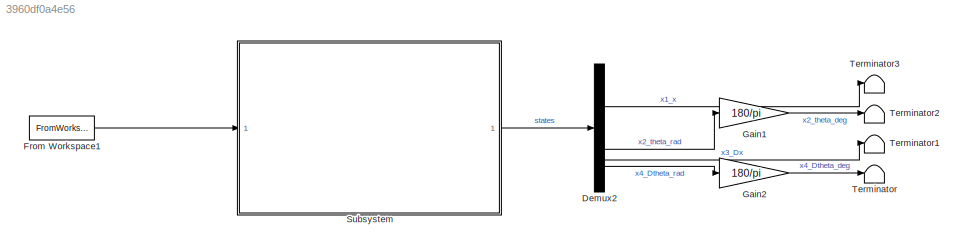
MODEL slx_3960df0a4e56
KIND model
CONFIG AbsTol = auto
CONFIG EnableMultiTasking = off
CONFIG FixedStep = dt
CONFIG MaxStep = 0.001
CONFIG MinStep = auto
CONFIG RelTol = 1e-3
CONFIG SampleTimeConstraint = Unconstrained
CONFIG SolverName = ode4
CONFIG StartTime = 0.0
CONFIG StopTime = end_time
BLOCK [Demux] Demux2
BLOCK [FromWorkspace] From Workspace1
  SampleTime = dt
  VariableName = U_sim
BLOCK [Gain] Gain1
  Gain = 180/pi
BLOCK [Gain] Gain2
  Gain = 180/pi
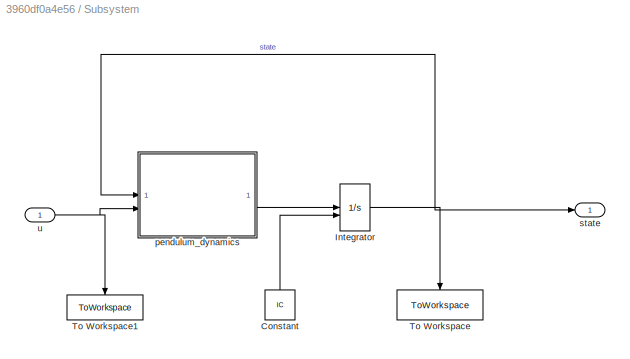
BLOCK [SubSystem] Subsystem
  ShowPortLabels = none
BLOCK [Constant] Subsystem/Constant
  NameLocation = right
  Value = IC
BLOCK [Integrator] Subsystem/Integrator
  InitialConditionSource = external
BLOCK [ToWorkspace] Subsystem/To Workspace
  FixptAsFi = on
  MaxDataPoints = inf
  NameLocation = left
  SampleTime = -1
  Save2DSignal = 2-D array (concatenate along first dimension)
  VariableName = state_out
BLOCK [ToWorkspace] Subsystem/To Workspace1
  FixptAsFi = on
  MaxDataPoints = inf
  NameLocation = left
  SampleTime = -1
  VariableName = u
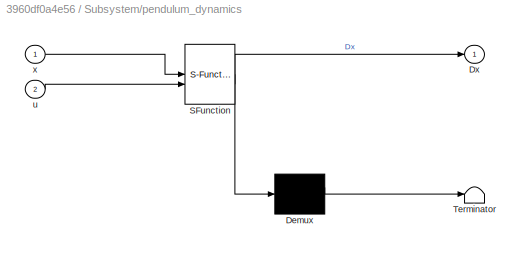
BLOCK [SubSystem] Subsystem/pendulum_dynamics
  ErrorFcn = Stateflow.Translate.translate
  PermitHierarchicalResolution = ExplicitOnly
  SFBlockType = MATLAB Function
  TreatAsAtomicUnit = on
BLOCK [Demux] Subsystem/pendulum_dynamics/ Demux 
  Outputs = 1
BLOCK [S-Function] Subsystem/pendulum_dynamics/ SFunction 
  EnableBusSupport = on
  FunctionName = sf_sfun
  Parameters = params
  PortCounts = [2 2]
  SFcnIsStateOwnerBlock = off
  SFunctionDeploymentMode = off
  Tag = Stateflow S-Function 3
BLOCK [Terminator] Subsystem/pendulum_dynamics/ Terminator 
BLOCK [Outport] Subsystem/pendulum_dynamics/Dx
BLOCK [Inport] Subsystem/pendulum_dynamics/u
  Port = 2
BLOCK [Inport] Subsystem/pendulum_dynamics/x
BLOCK [Outport] Subsystem/state
BLOCK [Inport] Subsystem/u
BLOCK [Terminator] Terminator
BLOCK [Terminator] Terminator1
BLOCK [Terminator] Terminator2
BLOCK [Terminator] Terminator3
LINE Demux2:1 -> Terminator3:1
LINE Demux2:2 -> Gain1:1
LINE Demux2:3 -> Terminator1:1
LINE Demux2:4 -> Gain2:1
LINE From Workspace1:1 -> Subsystem:1
LINE Gain1:1 -> Terminator2:1
LINE Gain2:1 -> Terminator:1
LINE Subsystem/Constant:1 -> Subsystem/Integrator:2
NET Subsystem/Integrator:1 -> Subsystem/To Workspace:1, Subsystem/pendulum_dynamics:1, Subsystem/state:1
LINE Subsystem/pendulum_dynamics:1 -> Subsystem/Integrator:1
NET Subsystem/u:1 -> Subsystem/To Workspace1:1, Subsystem/pendulum_dynamics:2
LINE Subsystem:1 -> Demux2:1
note: NET lines group one-source signal fan-out (src -> all destinations, sorted); 1:1 wires keep LINE
CHART Subsystem/pendulum_dynamics states=1 transitions=1
  STATE_LABEL 'eML_blk_kernel()'
  STATE_LABEL 'SCRIPT:\nfunction Dx = dynamika_wahadla(x, u, params)\n% x : state\n% u : input signal\n%\n% params scope: "parameters"\n\n% State, function input: x = [x Dx theta Dtheta]\'\nx1 = x(1);\nx2 = x(2);\nx3 = x(3);\nx4 = x(4);\n\n% % Sat na x1   \n% if x1 >= 0.4\n%     x1 = 0.4;\n% elseif x1 <= -0.4\n%     x1 = -0.4;\n% end\n\n% Params\nparams = num2cell(params);\n[M, mc, mp, Lp, Lc, g, b, gamma, D, alpha, mr, Mt, L, Jcm, Jt...<+988ch>'
CHART  states=0 transitions=0
